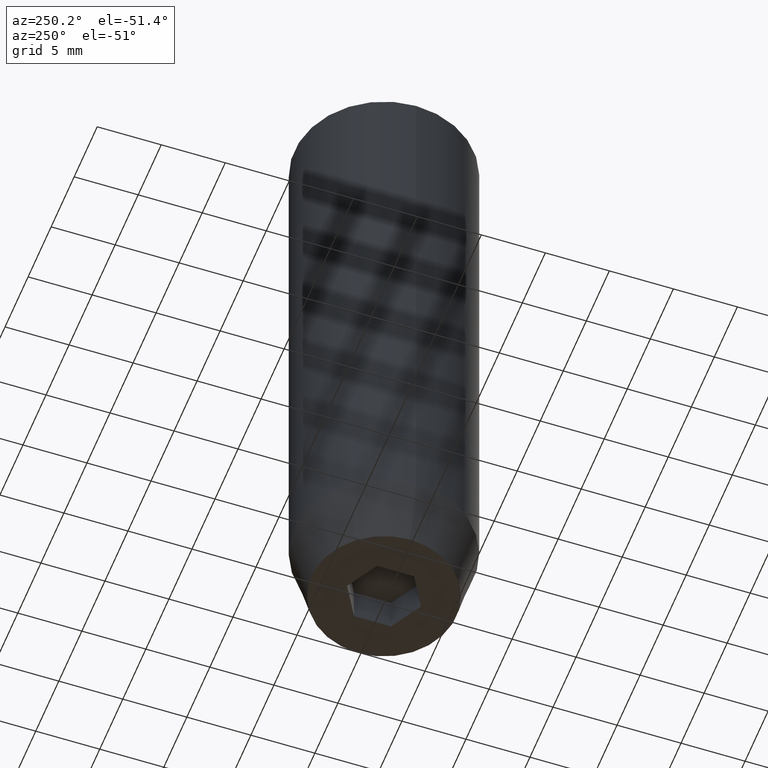
[diagram: clean part render]
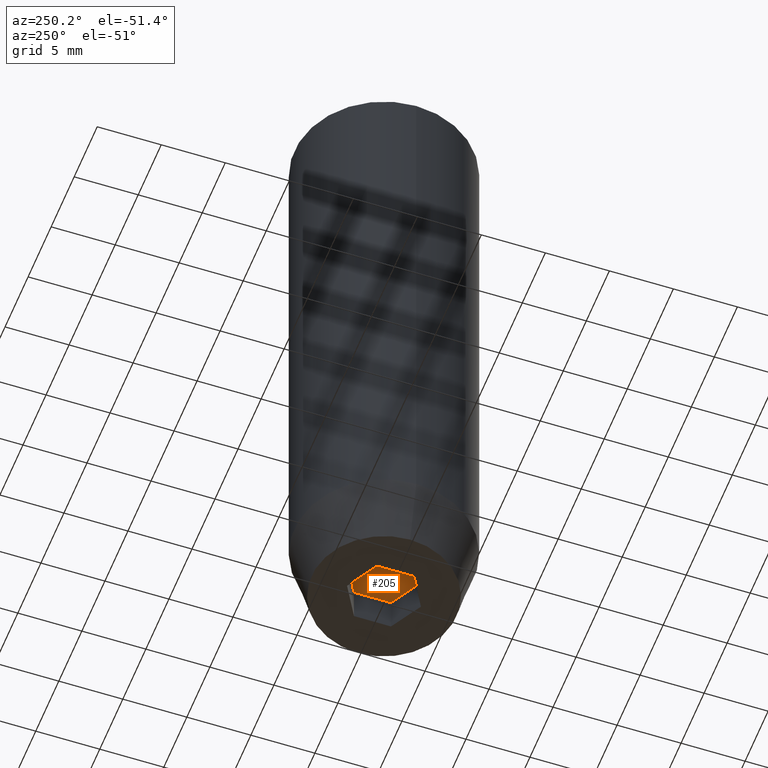
[diagram: same view with one face highlighted and labeled with its STEP entity id]
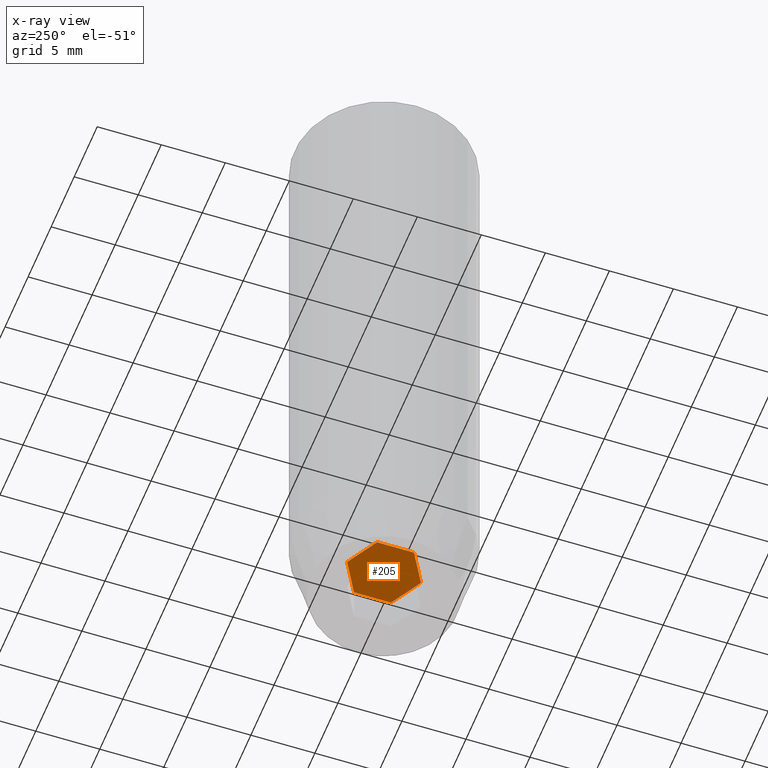
[diagram: x-ray of the same camera — body ghosted, the highlighted face saturated]
A machine part, auxiliary view. The second image highlights one B-rep face of the part: STEP entity #205.
The next image is the same camera in x-ray: the body ghosted, the highlighted face saturated — about 0% of this face is hidden behind the body in this view.
In plain terms, the highlighted planar face has unit normal (0, 0, -1).
Its self-contained STEP definition (entity closure, byte-faithful):
#15 = CARTESIAN_POINT ( 'NONE',  ( -1.249999999999999556, -2.165063509461096825, -47.20000000000000284 ) ) ;
#21 = CARTESIAN_POINT ( 'NONE',  ( -1.084202172485504434E-16, 2.886751345948129543, -47.20000000000000284 ) ) ;
#43 = EDGE_CURVE ( 'NONE', #460, #94, #343, .T. ) ;
#46 = CARTESIAN_POINT ( 'NONE',  ( 2.500000000000000000, -1.443375672974064106, -47.20000000000000284 ) ) ;
#62 = ORIENTED_EDGE ( 'NONE', *, *, #437, .T. ) ;
#79 = ORIENTED_EDGE ( 'NONE', *, *, #43, .T. ) ;
#80 = AXIS2_PLACEMENT_3D ( 'NONE', #231, #416, #195 ) ;
#94 = VERTEX_POINT ( 'NONE', #235 ) ;
#103 = DIRECTION ( 'NONE',  ( -0.8660254037844387076, 0.4999999999999998890, 0.000000000000000000 ) ) ;
#126 = VECTOR ( 'NONE', #536, 1000.000000000000000 ) ;
#133 = CARTESIAN_POINT ( 'NONE',  ( -2.500000000000000444, 0.000000000000000000, -47.20000000000000284 ) ) ;
#175 = EDGE_CURVE ( 'NONE', #94, #273, #518, .T. ) ;
#179 = LINE ( 'NONE', #133, #185 ) ;
#184 = CARTESIAN_POINT ( 'NONE',  ( -1.250000000000000444, 2.165063509461097269, -47.20000000000000284 ) ) ;
#185 = VECTOR ( 'NONE', #365, 1000.000000000000000 ) ;
#192 = EDGE_LOOP ( 'NONE', ( #424, #471, #512, #79, #249, #62 ) ) ;
#193 = PLANE ( 'NONE',  #80 ) ;
#195 = DIRECTION ( 'NONE',  ( -1.000000000000000000, 0.000000000000000000, -0.000000000000000000 ) ) ;
#197 = EDGE_CURVE ( 'NONE', #234, #331, #369, .T. ) ;
#205 = ADVANCED_FACE ( 'NONE', ( #276 ), #193, .T. ) ;
#219 = LINE ( 'NONE', #184, #126 ) ;
#231 = CARTESIAN_POINT ( 'NONE',  ( 0.000000000000000000, 0.000000000000000000, -47.20000000000000284 ) ) ;
#234 = VERTEX_POINT ( 'NONE', #21 ) ;
#235 = CARTESIAN_POINT ( 'NONE',  ( 0.000000000000000000, -2.886751345948128211, -47.20000000000000284 ) ) ;
#237 = VECTOR ( 'NONE', #484, 999.9999999999998863 ) ;
#245 = CARTESIAN_POINT ( 'NONE',  ( 2.500000000000000000, 1.443375672974064328, -47.20000000000000284 ) ) ;
#249 = ORIENTED_EDGE ( 'NONE', *, *, #175, .T. ) ;
#261 = CARTESIAN_POINT ( 'NONE',  ( 2.500000000000000000, 0.000000000000000000, -47.20000000000000284 ) ) ;
#262 = VECTOR ( 'NONE', #361, 1000.000000000000000 ) ;
#273 = VERTEX_POINT ( 'NONE', #297 ) ;
#276 = FACE_OUTER_BOUND ( 'NONE', #192, .T. ) ;
#297 = CARTESIAN_POINT ( 'NONE',  ( -2.500000000000000444, -1.443375672974064328, -47.20000000000000284 ) ) ;
#331 = VERTEX_POINT ( 'NONE', #245 ) ;
#336 = CARTESIAN_POINT ( 'NONE',  ( -2.500000000000000444, 1.443375672974064772, -47.20000000000000284 ) ) ;
#343 = LINE ( 'NONE', #527, #237 ) ;
#356 = VERTEX_POINT ( 'NONE', #336 ) ;
#361 = DIRECTION ( 'NONE',  ( 0.000000000000000000, -1.000000000000000000, 0.000000000000000000 ) ) ;
#365 = DIRECTION ( 'NONE',  ( 0.000000000000000000, 1.000000000000000000, 0.000000000000000000 ) ) ;
#367 = CARTESIAN_POINT ( 'NONE',  ( 1.250000000000000222, 2.165063509461096825, -47.20000000000000284 ) ) ;
#369 = LINE ( 'NONE', #367, #474 ) ;
#415 = EDGE_CURVE ( 'NONE', #356, #234, #219, .T. ) ;
#416 = DIRECTION ( 'NONE',  ( 0.000000000000000000, 0.000000000000000000, -1.000000000000000000 ) ) ;
#424 = ORIENTED_EDGE ( 'NONE', *, *, #415, .T. ) ;
#437 = EDGE_CURVE ( 'NONE', #273, #356, #179, .T. ) ;
#456 = EDGE_CURVE ( 'NONE', #331, #460, #499, .T. ) ;
#460 = VERTEX_POINT ( 'NONE', #46 ) ;
#471 = ORIENTED_EDGE ( 'NONE', *, *, #197, .T. ) ;
#474 = VECTOR ( 'NONE', #550, 1000.000000000000000 ) ;
#484 = DIRECTION ( 'NONE',  ( -0.8660254037844387076, -0.5000000000000001110, 0.000000000000000000 ) ) ;
#499 = LINE ( 'NONE', #261, #262 ) ;
#512 = ORIENTED_EDGE ( 'NONE', *, *, #456, .T. ) ;
#518 = LINE ( 'NONE', #15, #565 ) ;
#527 = CARTESIAN_POINT ( 'NONE',  ( 1.249999999999999778, -2.165063509461096380, -47.20000000000000284 ) ) ;
#536 = DIRECTION ( 'NONE',  ( 0.8660254037844385966, 0.5000000000000001110, 0.000000000000000000 ) ) ;
#550 = DIRECTION ( 'NONE',  ( 0.8660254037844385966, -0.5000000000000001110, 0.000000000000000000 ) ) ;
#565 = VECTOR ( 'NONE', #103, 1000.000000000000114 ) ;